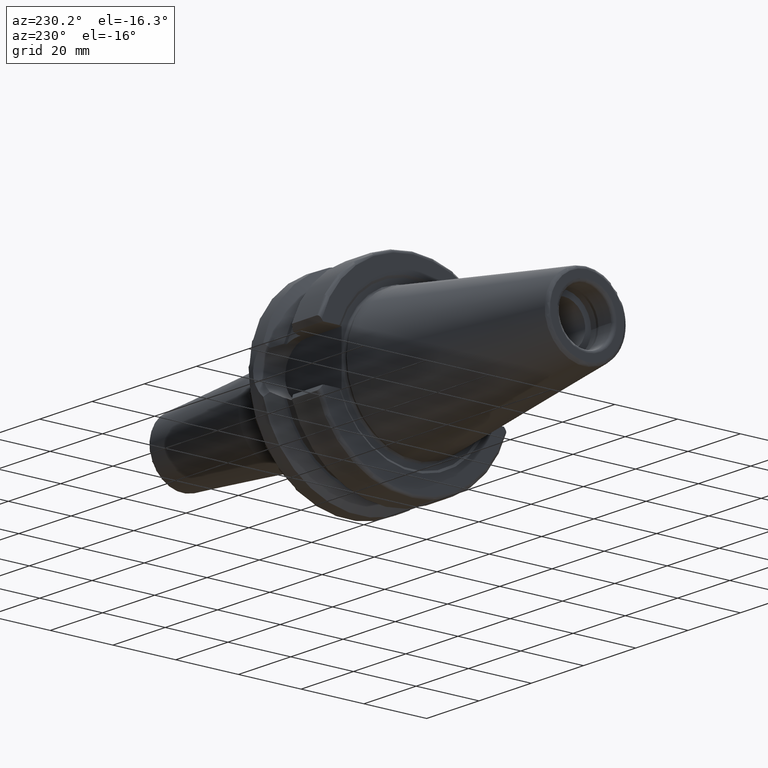
[diagram: clean part render]
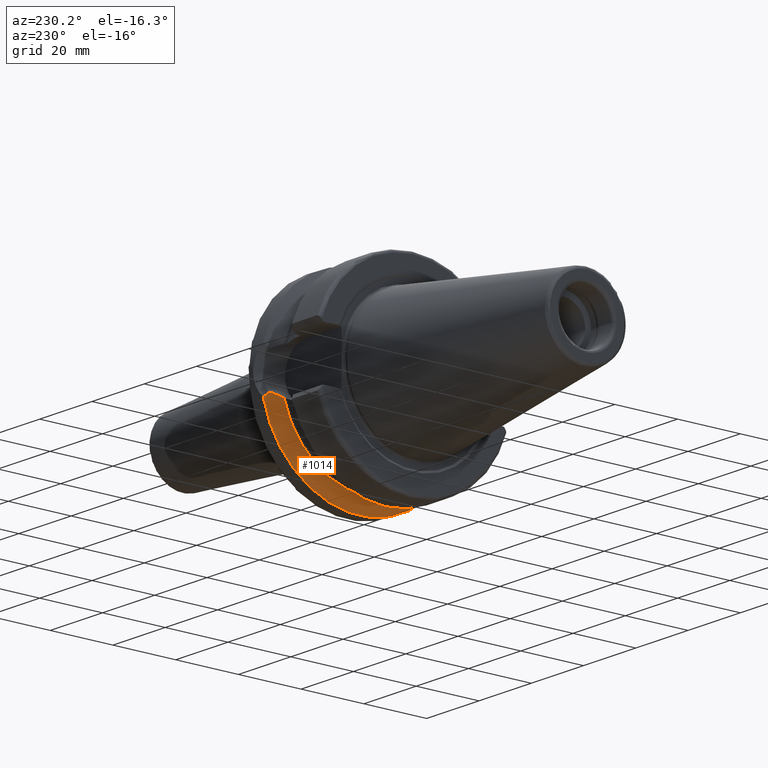
[diagram: same view with one face highlighted and labeled with its STEP entity id]
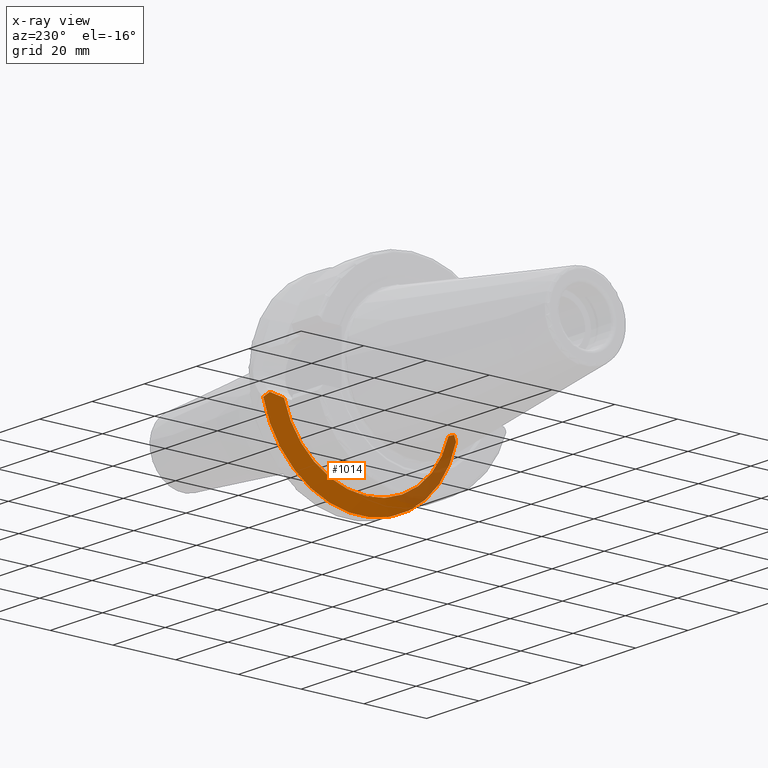
[diagram: x-ray of the same camera — body ghosted, the highlighted face saturated]
A machine part, auxiliary view. The second image highlights one B-rep face of the part: STEP entity #1014.
The next image is the same camera in x-ray: the body ghosted, the highlighted face saturated — about 21% of this face is hidden behind the body in this view.
In plain terms, the highlighted conical surface has half-angle 60.125 deg.
Its self-contained STEP definition (entity closure, byte-faithful):
#27=B_SPLINE_CURVE_WITH_KNOTS('',3,(#1618,#1619,#1620,#1621,#1622,#1623,
#1624,#1625,#1626,#1627,#1628,#1629,#1630),.UNSPECIFIED.,.F.,.F.,(4,3,3,
3,4),(0.,0.0664531587225279,0.104853023510996,0.177983430060358,0.209498394875555),
 .UNSPECIFIED.);
#33=B_SPLINE_CURVE_WITH_KNOTS('',3,(#1690,#1691,#1692,#1693,#1694,#1695),
 .UNSPECIFIED.,.F.,.F.,(4,2,4),(3.3443816511031,3.62699288756974,3.70848737461385),
 .UNSPECIFIED.);
#34=B_SPLINE_CURVE_WITH_KNOTS('',3,(#1699,#1700,#1701,#1702,#1703,#1704),
 .UNSPECIFIED.,.F.,.F.,(4,2,4),(1.4642102789956,1.54570476603971,1.82831600250635),
 .UNSPECIFIED.);
#35=B_SPLINE_CURVE_WITH_KNOTS('',3,(#1705,#1706,#1707,#1708,#1709,#1710,
#1711,#1712,#1713,#1714,#1715,#1716,#1717),.UNSPECIFIED.,.F.,.F.,(4,3,3,
3,4),(0.,0.0731680095119501,0.1046498206212,0.171142802083564,0.209508940919203),
 .UNSPECIFIED.);
#52=CONICAL_SURFACE('',#1123,29.2970358274569,1.04937921276159);
#238=FACE_OUTER_BOUND('',#303,.T.);
#303=EDGE_LOOP('',(#745,#746,#747,#748,#749,#750));
#373=CIRCLE('',#1120,31.5000000000001);
#376=CIRCLE('',#1124,27.0940716549138);
#435=VERTEX_POINT('',#1616);
#436=VERTEX_POINT('',#1617);
#442=VERTEX_POINT('',#1674);
#444=VERTEX_POINT('',#1689);
#445=VERTEX_POINT('',#1696);
#446=VERTEX_POINT('',#1698);
#547=EDGE_CURVE('',#435,#436,#27,.T.);
#554=EDGE_CURVE('',#436,#442,#373,.T.);
#558=EDGE_CURVE('',#435,#444,#33,.T.);
#559=EDGE_CURVE('',#444,#445,#376,.T.);
#560=EDGE_CURVE('',#445,#446,#34,.T.);
#561=EDGE_CURVE('',#442,#446,#35,.T.);
#745=ORIENTED_EDGE('',*,*,#547,.F.);
#746=ORIENTED_EDGE('',*,*,#558,.T.);
#747=ORIENTED_EDGE('',*,*,#559,.T.);
#748=ORIENTED_EDGE('',*,*,#560,.T.);
#749=ORIENTED_EDGE('',*,*,#561,.F.);
#750=ORIENTED_EDGE('',*,*,#554,.F.);
#1014=ADVANCED_FACE('',(#238),#52,.T.);
#1120=AXIS2_PLACEMENT_3D('',#1675,#1293,#1294);
#1123=AXIS2_PLACEMENT_3D('',#1688,#1299,#1300);
#1124=AXIS2_PLACEMENT_3D('',#1697,#1301,#1302);
#1293=DIRECTION('center_axis',(1.,0.,0.));
#1294=DIRECTION('ref_axis',(0.,0.,-1.));
#1299=DIRECTION('center_axis',(1.,0.,0.));
#1300=DIRECTION('ref_axis',(0.,1.,0.));
#1301=DIRECTION('center_axis',(1.,0.,0.));
#1302=DIRECTION('ref_axis',(0.,0.,-1.));
#1616=CARTESIAN_POINT('',(20.7197593187301,-29.382324732277,-5.61358863864523));
#1617=CARTESIAN_POINT('',(21.6299421260813,-30.7246846942765,-6.93811567649096));
#1618=CARTESIAN_POINT('Ctrl Pts',(20.7197515894297,-29.3823222023351,-5.6135976222994));
#1619=CARTESIAN_POINT('Ctrl Pts',(20.8149264355645,-29.524026114629,-5.7547661210476));
#1620=CARTESIAN_POINT('Ctrl Pts',(20.9105912690422,-29.6660033681647,-5.89573769518929));
#1621=CARTESIAN_POINT('Ctrl Pts',(21.0065888438124,-29.8080348170155,-6.03632495644047));
#1622=CARTESIAN_POINT('Ctrl Pts',(21.0620609080764,-29.8901074910076,-6.11756310864882));
#1623=CARTESIAN_POINT('Ctrl Pts',(21.1176433000864,-29.9721980100242,-6.19867342834086));
#1624=CARTESIAN_POINT('Ctrl Pts',(21.1732991947734,-30.0542619764308,-6.2796238510428));
#1625=CARTESIAN_POINT('Ctrl Pts',(21.2792927504213,-30.2105482357556,-6.43378942832144));
#1626=CARTESIAN_POINT('Ctrl Pts',(21.3858010606704,-30.3670979925381,-6.58772453018034));
#1627=CARTESIAN_POINT('Ctrl Pts',(21.4926516370903,-30.5236804760801,-6.74123636564704));
#1628=CARTESIAN_POINT('Ctrl Pts',(21.5386980398828,-30.5911584471778,-6.80739106547336));
#1629=CARTESIAN_POINT('Ctrl Pts',(21.5848074729004,-30.6586423209313,-6.87346749565565));
#1630=CARTESIAN_POINT('Ctrl Pts',(21.6309636926618,-30.7261128229805,-6.93945176433104));
#1674=CARTESIAN_POINT('',(21.6309636926619,30.7261128229805,-6.93945176433101));
#1675=CARTESIAN_POINT('Origin',(21.6309636926619,0.,0.));
#1688=CARTESIAN_POINT('Origin',(20.3654818463309,0.,0.));
#1689=CARTESIAN_POINT('',(19.1,-26.201311395455,-6.89782574439221));
#1690=CARTESIAN_POINT('Ctrl Pts',(20.7197593187301,-29.382324732277,-5.61358863864523));
#1691=CARTESIAN_POINT('Ctrl Pts',(20.3012218741369,-28.558364647748,-6.04376984297407));
#1692=CARTESIAN_POINT('Ctrl Pts',(19.867744184216,-27.7064624084632,-6.39234949299032));
#1693=CARTESIAN_POINT('Ctrl Pts',(19.3406963650697,-26.6728819297427,-6.7486710865604));
#1694=CARTESIAN_POINT('Ctrl Pts',(19.2210929544554,-26.438473693351,-6.82497151762395));
#1695=CARTESIAN_POINT('Ctrl Pts',(19.1,-26.201311395455,-6.89782574439221));
#1696=CARTESIAN_POINT('',(19.1,26.201311395455,-6.89782574439221));
#1697=CARTESIAN_POINT('Origin',(19.1,0.,0.));
#1698=CARTESIAN_POINT('',(20.7197593187301,29.382324732277,-5.61358863864523));
#1699=CARTESIAN_POINT('Ctrl Pts',(19.1,26.201311395455,-6.89782574439221));
#1700=CARTESIAN_POINT('Ctrl Pts',(19.2210929544554,26.438473693351,-6.82497151762395));
#1701=CARTESIAN_POINT('Ctrl Pts',(19.3406963650697,26.6728819297428,-6.74867108656041));
#1702=CARTESIAN_POINT('Ctrl Pts',(19.8677441842159,27.7064624084632,-6.39234949299032));
#1703=CARTESIAN_POINT('Ctrl Pts',(20.3012218741369,28.558364647748,-6.04376984297407));
#1704=CARTESIAN_POINT('Ctrl Pts',(20.7197593187301,29.382324732277,-5.61358863864523));
#1705=CARTESIAN_POINT('Ctrl Pts',(21.6309636926619,30.7261128229805,-6.93945176433103));
#1706=CARTESIAN_POINT('Ctrl Pts',(21.5238086080183,30.5694750524831,-6.78626439475016));
#1707=CARTESIAN_POINT('Ctrl Pts',(21.4169091348709,30.4127664111931,-6.63257916592675));
#1708=CARTESIAN_POINT('Ctrl Pts',(21.3104565369136,30.2562241218034,-6.47857776698176));
#1709=CARTESIAN_POINT('Ctrl Pts',(21.2646534516126,30.1888690739068,-6.41231598147625));
#1710=CARTESIAN_POINT('Ctrl Pts',(21.2189325585334,30.1215446447281,-6.3459960013748));
#1711=CARTESIAN_POINT('Ctrl Pts',(21.1733066768474,30.0542689338646,-6.27963381498106));
#1712=CARTESIAN_POINT('Ctrl Pts',(21.076939892401,29.9121753745142,-6.13946971786581));
#1713=CARTESIAN_POINT('Ctrl Pts',(20.9807965697094,29.7700032858459,-5.99882548572017));
#1714=CARTESIAN_POINT('Ctrl Pts',(20.8850589554828,29.627980233838,-5.85787328483471));
#1715=CARTESIAN_POINT('Ctrl Pts',(20.8298188005307,29.5460335980976,-5.77654452517574));
#1716=CARTESIAN_POINT('Ctrl Pts',(20.7747129164533,29.4641363178945,-5.69511373442206));
#1717=CARTESIAN_POINT('Ctrl Pts',(20.7197698702457,29.3823300093151,-5.61361800937777));